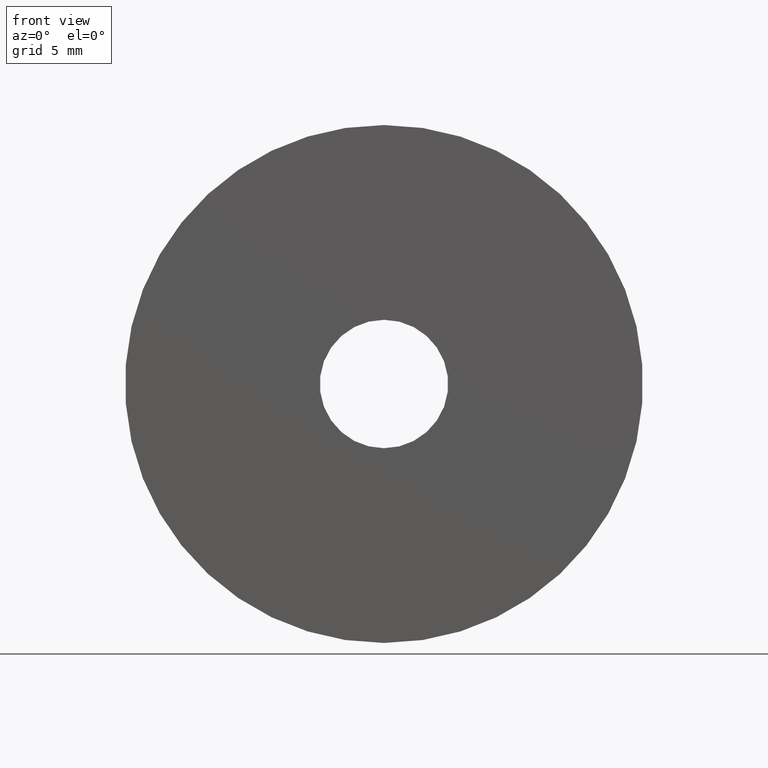
[diagram: clean part render]
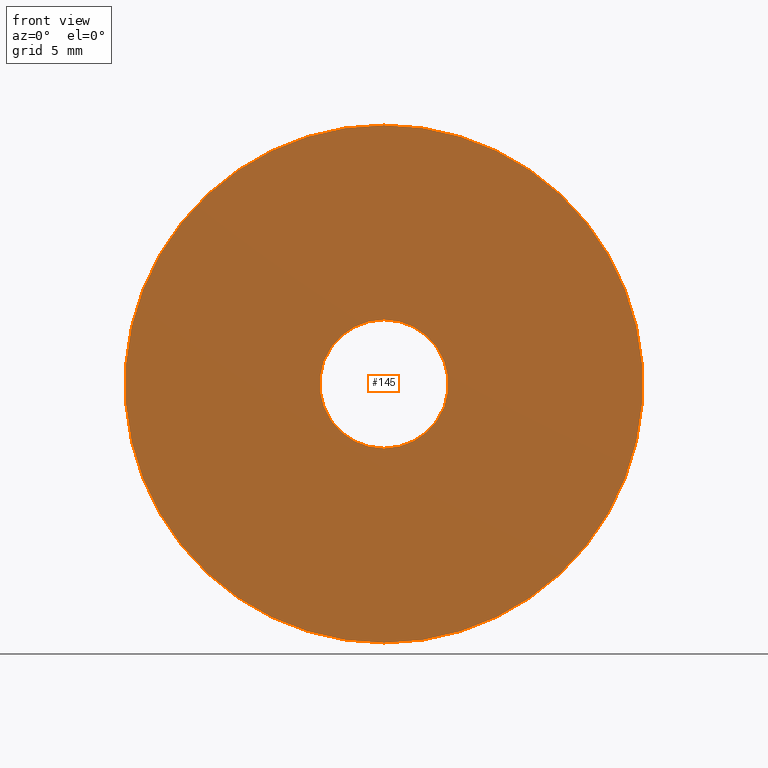
[diagram: same view with one face highlighted and labeled with its STEP entity id]
A machine part, front view. The second image highlights one B-rep face of the part: STEP entity #145.
In plain terms, the highlighted planar face has unit normal (0, 1, 0).
Its self-contained STEP definition (entity closure, byte-faithful):
#3 = EDGE_CURVE ( 'NONE', #107, #156, #49, .T. ) ;
#8 = ORIENTED_EDGE ( 'NONE', *, *, #3, .T. ) ;
#13 = CARTESIAN_POINT ( 'NONE',  ( 0.000000000000000000, -0.1000000000000000056, -12.50000000000000000 ) ) ;
#29 = CIRCLE ( 'NONE', #182, 3.100000000000000089 ) ;
#33 = VERTEX_POINT ( 'NONE', #92 ) ;
#38 = CARTESIAN_POINT ( 'NONE',  ( 0.000000000000000000, -0.1000000000000000056, 0.000000000000000000 ) ) ;
#40 = PLANE ( 'NONE',  #60 ) ;
#49 = CIRCLE ( 'NONE', #104, 3.100000000000000089 ) ;
#50 = CARTESIAN_POINT ( 'NONE',  ( 0.000000000000000000, -0.1000000000000000056, 0.000000000000000000 ) ) ;
#60 = AXIS2_PLACEMENT_3D ( 'NONE', #38, #233, #76 ) ;
#72 = EDGE_CURVE ( 'NONE', #130, #33, #117, .T. ) ;
#76 = DIRECTION ( 'NONE',  ( 0.000000000000000000, -0.000000000000000000, 1.000000000000000000 ) ) ;
#84 = AXIS2_PLACEMENT_3D ( 'NONE', #181, #179, #119 ) ;
#92 = CARTESIAN_POINT ( 'NONE',  ( 1.530808498934191521E-15, -0.1000000000000000056, 12.50000000000000000 ) ) ;
#99 = FACE_BOUND ( 'NONE', #174, .T. ) ;
#104 = AXIS2_PLACEMENT_3D ( 'NONE', #50, #153, #244 ) ;
#107 = VERTEX_POINT ( 'NONE', #136 ) ;
#109 = EDGE_CURVE ( 'NONE', #156, #107, #29, .T. ) ;
#111 = CIRCLE ( 'NONE', #84, 12.50000000000000000 ) ;
#114 = EDGE_LOOP ( 'NONE', ( #183, #187 ) ) ;
#117 = CIRCLE ( 'NONE', #167, 12.50000000000000000 ) ;
#119 = DIRECTION ( 'NONE',  ( 0.000000000000000000, 0.000000000000000000, 1.000000000000000000 ) ) ;
#120 = FACE_OUTER_BOUND ( 'NONE', #114, .T. ) ;
#130 = VERTEX_POINT ( 'NONE', #13 ) ;
#134 = DIRECTION ( 'NONE',  ( 0.000000000000000000, 1.000000000000000000, 0.000000000000000000 ) ) ;
#136 = CARTESIAN_POINT ( 'NONE',  ( 3.796405077356794918E-16, -0.1000000000000000056, -3.100000000000000089 ) ) ;
#140 = DIRECTION ( 'NONE',  ( 0.000000000000000000, 1.000000000000000000, 0.000000000000000000 ) ) ;
#145 = ADVANCED_FACE ( 'NONE', ( #99, #120 ), #40, .F. ) ;
#153 = DIRECTION ( 'NONE',  ( 0.000000000000000000, 1.000000000000000000, 0.000000000000000000 ) ) ;
#156 = VERTEX_POINT ( 'NONE', #199 ) ;
#167 = AXIS2_PLACEMENT_3D ( 'NONE', #177, #140, #209 ) ;
#174 = EDGE_LOOP ( 'NONE', ( #189, #8 ) ) ;
#177 = CARTESIAN_POINT ( 'NONE',  ( 0.000000000000000000, -0.1000000000000000056, 0.000000000000000000 ) ) ;
#179 = DIRECTION ( 'NONE',  ( 0.000000000000000000, 1.000000000000000000, 0.000000000000000000 ) ) ;
#181 = CARTESIAN_POINT ( 'NONE',  ( 0.000000000000000000, -0.1000000000000000056, 0.000000000000000000 ) ) ;
#182 = AXIS2_PLACEMENT_3D ( 'NONE', #232, #134, #205 ) ;
#183 = ORIENTED_EDGE ( 'NONE', *, *, #72, .F. ) ;
#187 = ORIENTED_EDGE ( 'NONE', *, *, #249, .F. ) ;
#189 = ORIENTED_EDGE ( 'NONE', *, *, #109, .T. ) ;
#199 = CARTESIAN_POINT ( 'NONE',  ( 0.000000000000000000, -0.1000000000000000056, 3.100000000000000089 ) ) ;
#205 = DIRECTION ( 'NONE',  ( 0.000000000000000000, 0.000000000000000000, 1.000000000000000000 ) ) ;
#209 = DIRECTION ( 'NONE',  ( 0.000000000000000000, 0.000000000000000000, 1.000000000000000000 ) ) ;
#232 = CARTESIAN_POINT ( 'NONE',  ( 0.000000000000000000, -0.1000000000000000056, 0.000000000000000000 ) ) ;
#233 = DIRECTION ( 'NONE',  ( 0.000000000000000000, 1.000000000000000000, 0.000000000000000000 ) ) ;
#244 = DIRECTION ( 'NONE',  ( 0.000000000000000000, 0.000000000000000000, 1.000000000000000000 ) ) ;
#249 = EDGE_CURVE ( 'NONE', #33, #130, #111, .T. ) ;